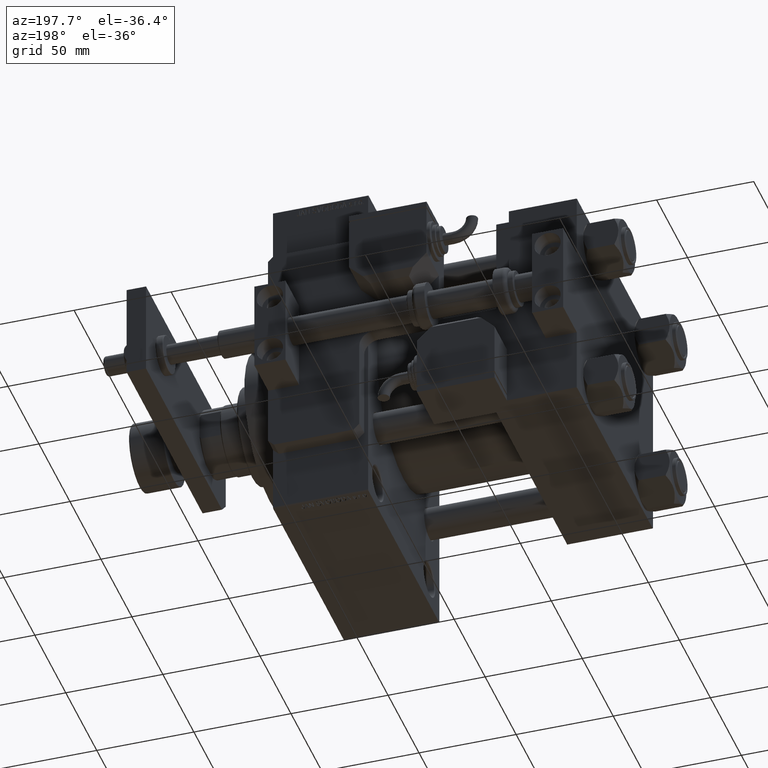
[diagram: clean part render]
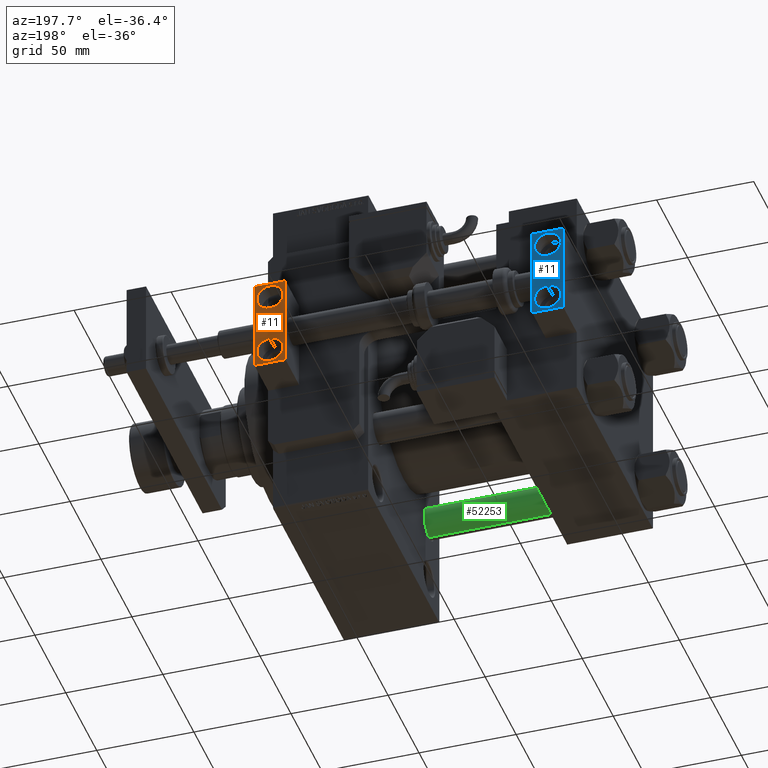
[diagram: same view with three faces highlighted in distinct colors, each labeled with its STEP entity id]
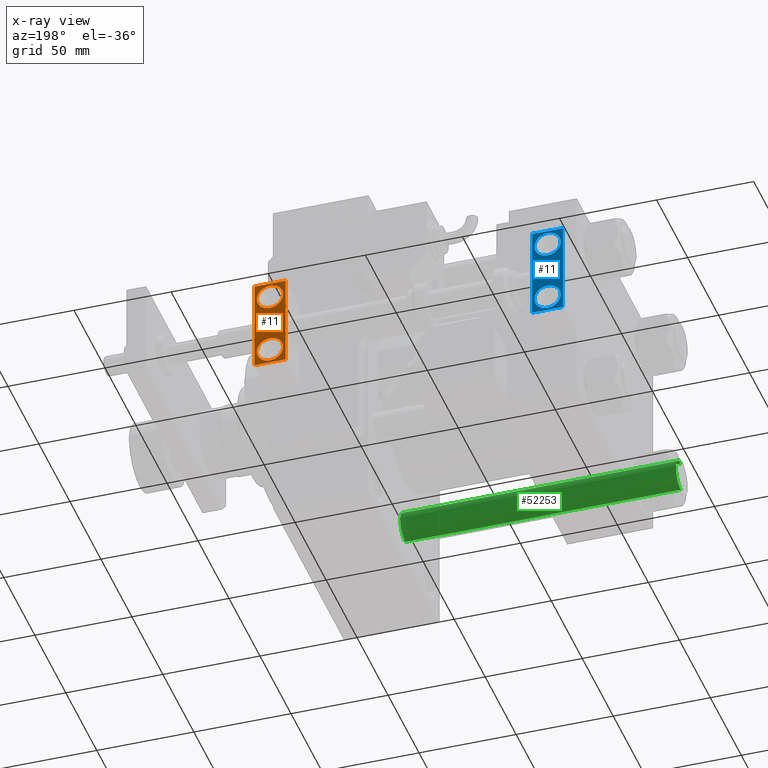
[diagram: x-ray of the same camera — body ghosted, the three highlighted faces saturated]
A machine part, auxiliary view with three faces highlighted in distinct colors.
The next image is the same camera in x-ray (body ghosted, the three faces saturated) — at least one of them is partly hidden behind the body in this view.
Their STEP definitions:

[orange] entity #11 — the highlighted planar face has unit normal (0, 1, -0).
#11 = ADVANCED_FACE ( 'NONE', ( #45481, #41648, #16630 ), #33487, .T. ) ;
#353 = ORIENTED_EDGE ( 'NONE', *, *, #23832, .T. ) ;
#665 = DIRECTION ( 'NONE',  ( 1.445602896647339410E-16, 1.000000000000000000, 0.000000000000000000 ) ) ;
#768 = LINE ( 'NONE', #29644, #4880 ) ;
#1466 = VECTOR ( 'NONE', #36576, 1000.000000000000000 ) ;
#3388 = EDGE_LOOP ( 'NONE', ( #29227, #20507 ) ) ;
#4096 = DIRECTION ( 'NONE',  ( -1.000000000000000000, 1.445602896647339410E-16, 0.000000000000000000 ) ) ;
#4880 = VECTOR ( 'NONE', #17121, 1000.000000000000000 ) ;
#4906 = VERTEX_POINT ( 'NONE', #14525 ) ;
#4992 = CIRCLE ( 'NONE', #11956, 6.749999999999999112 ) ;
#6104 = LINE ( 'NONE', #22734, #1466 ) ;
#6400 = EDGE_CURVE ( 'NONE', #23525, #45146, #10450, .T. ) ;
#6593 = VERTEX_POINT ( 'NONE', #11577 ) ;
#6870 = AXIS2_PLACEMENT_3D ( 'NONE', #8714, #42179, #4096 ) ;
#8125 = CARTESIAN_POINT ( 'NONE',  ( -23.99999999999999645, 11.00000000000000000, -16.00000000000000000 ) ) ;
#8427 = ORIENTED_EDGE ( 'NONE', *, *, #50709, .F. ) ;
#8714 = CARTESIAN_POINT ( 'NONE',  ( -23.99999999999999645, 11.00000000000000000, -16.00000000000000000 ) ) ;
#9009 = CARTESIAN_POINT ( 'NONE',  ( -22.75000000000000000, 11.00000000000000000, -8.000000000000000000 ) ) ;
#9593 = AXIS2_PLACEMENT_3D ( 'NONE', #20641, #37223, #29597 ) ;
#10450 = CIRCLE ( 'NONE', #9593, 6.749999999999999112 ) ;
#11078 = EDGE_CURVE ( 'NONE', #43535, #15525, #24243, .T. ) ;
#11577 = CARTESIAN_POINT ( 'NONE',  ( -23.99999999999999645, 11.00000000000000000, 0.000000000000000000 ) ) ;
#11956 = AXIS2_PLACEMENT_3D ( 'NONE', #23596, #51894, #39100 ) ;
#12275 = EDGE_CURVE ( 'NONE', #15525, #6593, #6104, .T. ) ;
#13013 = DIRECTION ( 'NONE',  ( 0.000000000000000000, 0.000000000000000000, 1.000000000000000000 ) ) ;
#14238 = EDGE_CURVE ( 'NONE', #4906, #52231, #17603, .T. ) ;
#14525 = CARTESIAN_POINT ( 'NONE',  ( 22.75000000000000000, 10.99999999999999289, -8.000000000000000000 ) ) ;
#15525 = VERTEX_POINT ( 'NONE', #25813 ) ;
#15571 = DIRECTION ( 'NONE',  ( -1.000000000000000000, 2.569960705150825891E-16, 0.000000000000000000 ) ) ;
#16630 = FACE_OUTER_BOUND ( 'NONE', #30272, .T. ) ;
#16706 = CARTESIAN_POINT ( 'NONE',  ( 9.249999999999998224, 10.99999999999999645, -8.000000000000000000 ) ) ;
#17121 = DIRECTION ( 'NONE',  ( -1.000000000000000000, 1.445602896647339410E-16, -0.000000000000000000 ) ) ;
#17603 = CIRCLE ( 'NONE', #48028, 6.749999999999999112 ) ;
#19889 = DIRECTION ( 'NONE',  ( 0.000000000000000000, 0.000000000000000000, 1.000000000000000000 ) ) ;
#20507 = ORIENTED_EDGE ( 'NONE', *, *, #14238, .F. ) ;
#20641 = CARTESIAN_POINT ( 'NONE',  ( -15.99999999999999645, 10.99999999999999822, -8.000000000000000000 ) ) ;
#21371 = CARTESIAN_POINT ( 'NONE',  ( -23.99999999999999645, 11.00000000000000000, -16.00000000000000000 ) ) ;
#22734 = CARTESIAN_POINT ( 'NONE',  ( -23.99999999999999645, 11.00000000000000000, 0.000000000000000000 ) ) ;
#23525 = VERTEX_POINT ( 'NONE', #9009 ) ;
#23596 = CARTESIAN_POINT ( 'NONE',  ( -15.99999999999999645, 10.99999999999999822, -8.000000000000000000 ) ) ;
#23832 = EDGE_CURVE ( 'NONE', #43535, #31454, #768, .T. ) ;
#24243 = LINE ( 'NONE', #28587, #50674 ) ;
#25813 = CARTESIAN_POINT ( 'NONE',  ( 23.99999999999999645, 10.99999999999999289, 0.000000000000000000 ) ) ;
#25864 = AXIS2_PLACEMENT_3D ( 'NONE', #30060, #665, #49698 ) ;
#26632 = EDGE_CURVE ( 'NONE', #31454, #6593, #50045, .T. ) ;
#26821 = ORIENTED_EDGE ( 'NONE', *, *, #12275, .F. ) ;
#27032 = CARTESIAN_POINT ( 'NONE',  ( 15.99999999999999645, 10.99999999999999467, -8.000000000000000000 ) ) ;
#28587 = CARTESIAN_POINT ( 'NONE',  ( 23.99999999999999645, 10.99999999999999289, -16.00000000000000000 ) ) ;
#29227 = ORIENTED_EDGE ( 'NONE', *, *, #53615, .F. ) ;
#29554 = ORIENTED_EDGE ( 'NONE', *, *, #26632, .T. ) ;
#29597 = DIRECTION ( 'NONE',  ( 1.000000000000000000, -2.569960705150825891E-16, 0.000000000000000000 ) ) ;
#29644 = CARTESIAN_POINT ( 'NONE',  ( -23.99999999999999645, 11.00000000000000000, -16.00000000000000000 ) ) ;
#29857 = ORIENTED_EDGE ( 'NONE', *, *, #6400, .F. ) ;
#30060 = CARTESIAN_POINT ( 'NONE',  ( 15.99999999999999645, 10.99999999999999467, -8.000000000000000000 ) ) ;
#30272 = EDGE_LOOP ( 'NONE', ( #26821, #33544, #353, #29554 ) ) ;
#31454 = VERTEX_POINT ( 'NONE', #21371 ) ;
#33487 = PLANE ( 'NONE',  #6870 ) ;
#33544 = ORIENTED_EDGE ( 'NONE', *, *, #11078, .F. ) ;
#36525 = DIRECTION ( 'NONE',  ( 1.445602896647339410E-16, 1.000000000000000000, 0.000000000000000000 ) ) ;
#36576 = DIRECTION ( 'NONE',  ( -1.000000000000000000, 1.445602896647339410E-16, -0.000000000000000000 ) ) ;
#37223 = DIRECTION ( 'NONE',  ( 1.445602896647339410E-16, 1.000000000000000000, -0.000000000000000000 ) ) ;
#39100 = DIRECTION ( 'NONE',  ( 1.000000000000000000, -2.569960705150825891E-16, 0.000000000000000000 ) ) ;
#39760 = CIRCLE ( 'NONE', #25864, 6.749999999999999112 ) ;
#41648 = FACE_BOUND ( 'NONE', #47179, .T. ) ;
#42179 = DIRECTION ( 'NONE',  ( 1.445602896647339410E-16, 1.000000000000000000, -0.000000000000000000 ) ) ;
#42870 = CARTESIAN_POINT ( 'NONE',  ( 23.99999999999999645, 10.99999999999999289, -16.00000000000000000 ) ) ;
#43535 = VERTEX_POINT ( 'NONE', #42870 ) ;
#45146 = VERTEX_POINT ( 'NONE', #47828 ) ;
#45481 = FACE_BOUND ( 'NONE', #3388, .T. ) ;
#47179 = EDGE_LOOP ( 'NONE', ( #29857, #8427 ) ) ;
#47828 = CARTESIAN_POINT ( 'NONE',  ( -9.249999999999996447, 10.99999999999999645, -8.000000000000000000 ) ) ;
#48028 = AXIS2_PLACEMENT_3D ( 'NONE', #27032, #36525, #15571 ) ;
#49698 = DIRECTION ( 'NONE',  ( -1.000000000000000000, 2.569960705150825891E-16, 0.000000000000000000 ) ) ;
#50045 = LINE ( 'NONE', #8125, #50999 ) ;
#50674 = VECTOR ( 'NONE', #19889, 1000.000000000000000 ) ;
#50709 = EDGE_CURVE ( 'NONE', #45146, #23525, #4992, .T. ) ;
#50999 = VECTOR ( 'NONE', #13013, 1000.000000000000000 ) ;
#51894 = DIRECTION ( 'NONE',  ( 1.445602896647339410E-16, 1.000000000000000000, -0.000000000000000000 ) ) ;
#52231 = VERTEX_POINT ( 'NONE', #16706 ) ;
#53615 = EDGE_CURVE ( 'NONE', #52231, #4906, #39760, .T. ) ;

[blue] entity #11 — the highlighted planar face has unit normal (0, 1, -0).
#11 = ADVANCED_FACE ( 'NONE', ( #45481, #41648, #16630 ), #33487, .T. ) ;
#353 = ORIENTED_EDGE ( 'NONE', *, *, #23832, .T. ) ;
#665 = DIRECTION ( 'NONE',  ( 1.445602896647339410E-16, 1.000000000000000000, 0.000000000000000000 ) ) ;
#768 = LINE ( 'NONE', #29644, #4880 ) ;
#1466 = VECTOR ( 'NONE', #36576, 1000.000000000000000 ) ;
#3388 = EDGE_LOOP ( 'NONE', ( #29227, #20507 ) ) ;
#4096 = DIRECTION ( 'NONE',  ( -1.000000000000000000, 1.445602896647339410E-16, 0.000000000000000000 ) ) ;
#4880 = VECTOR ( 'NONE', #17121, 1000.000000000000000 ) ;
#4906 = VERTEX_POINT ( 'NONE', #14525 ) ;
#4992 = CIRCLE ( 'NONE', #11956, 6.749999999999999112 ) ;
#6104 = LINE ( 'NONE', #22734, #1466 ) ;
#6400 = EDGE_CURVE ( 'NONE', #23525, #45146, #10450, .T. ) ;
#6593 = VERTEX_POINT ( 'NONE', #11577 ) ;
#6870 = AXIS2_PLACEMENT_3D ( 'NONE', #8714, #42179, #4096 ) ;
#8125 = CARTESIAN_POINT ( 'NONE',  ( -23.99999999999999645, 11.00000000000000000, -16.00000000000000000 ) ) ;
#8427 = ORIENTED_EDGE ( 'NONE', *, *, #50709, .F. ) ;
#8714 = CARTESIAN_POINT ( 'NONE',  ( -23.99999999999999645, 11.00000000000000000, -16.00000000000000000 ) ) ;
#9009 = CARTESIAN_POINT ( 'NONE',  ( -22.75000000000000000, 11.00000000000000000, -8.000000000000000000 ) ) ;
#9593 = AXIS2_PLACEMENT_3D ( 'NONE', #20641, #37223, #29597 ) ;
#10450 = CIRCLE ( 'NONE', #9593, 6.749999999999999112 ) ;
#11078 = EDGE_CURVE ( 'NONE', #43535, #15525, #24243, .T. ) ;
#11577 = CARTESIAN_POINT ( 'NONE',  ( -23.99999999999999645, 11.00000000000000000, 0.000000000000000000 ) ) ;
#11956 = AXIS2_PLACEMENT_3D ( 'NONE', #23596, #51894, #39100 ) ;
#12275 = EDGE_CURVE ( 'NONE', #15525, #6593, #6104, .T. ) ;
#13013 = DIRECTION ( 'NONE',  ( 0.000000000000000000, 0.000000000000000000, 1.000000000000000000 ) ) ;
#14238 = EDGE_CURVE ( 'NONE', #4906, #52231, #17603, .T. ) ;
#14525 = CARTESIAN_POINT ( 'NONE',  ( 22.75000000000000000, 10.99999999999999289, -8.000000000000000000 ) ) ;
#15525 = VERTEX_POINT ( 'NONE', #25813 ) ;
#15571 = DIRECTION ( 'NONE',  ( -1.000000000000000000, 2.569960705150825891E-16, 0.000000000000000000 ) ) ;
#16630 = FACE_OUTER_BOUND ( 'NONE', #30272, .T. ) ;
#16706 = CARTESIAN_POINT ( 'NONE',  ( 9.249999999999998224, 10.99999999999999645, -8.000000000000000000 ) ) ;
#17121 = DIRECTION ( 'NONE',  ( -1.000000000000000000, 1.445602896647339410E-16, -0.000000000000000000 ) ) ;
#17603 = CIRCLE ( 'NONE', #48028, 6.749999999999999112 ) ;
#19889 = DIRECTION ( 'NONE',  ( 0.000000000000000000, 0.000000000000000000, 1.000000000000000000 ) ) ;
#20507 = ORIENTED_EDGE ( 'NONE', *, *, #14238, .F. ) ;
#20641 = CARTESIAN_POINT ( 'NONE',  ( -15.99999999999999645, 10.99999999999999822, -8.000000000000000000 ) ) ;
#21371 = CARTESIAN_POINT ( 'NONE',  ( -23.99999999999999645, 11.00000000000000000, -16.00000000000000000 ) ) ;
#22734 = CARTESIAN_POINT ( 'NONE',  ( -23.99999999999999645, 11.00000000000000000, 0.000000000000000000 ) ) ;
#23525 = VERTEX_POINT ( 'NONE', #9009 ) ;
#23596 = CARTESIAN_POINT ( 'NONE',  ( -15.99999999999999645, 10.99999999999999822, -8.000000000000000000 ) ) ;
#23832 = EDGE_CURVE ( 'NONE', #43535, #31454, #768, .T. ) ;
#24243 = LINE ( 'NONE', #28587, #50674 ) ;
#25813 = CARTESIAN_POINT ( 'NONE',  ( 23.99999999999999645, 10.99999999999999289, 0.000000000000000000 ) ) ;
#25864 = AXIS2_PLACEMENT_3D ( 'NONE', #30060, #665, #49698 ) ;
#26632 = EDGE_CURVE ( 'NONE', #31454, #6593, #50045, .T. ) ;
#26821 = ORIENTED_EDGE ( 'NONE', *, *, #12275, .F. ) ;
#27032 = CARTESIAN_POINT ( 'NONE',  ( 15.99999999999999645, 10.99999999999999467, -8.000000000000000000 ) ) ;
#28587 = CARTESIAN_POINT ( 'NONE',  ( 23.99999999999999645, 10.99999999999999289, -16.00000000000000000 ) ) ;
#29227 = ORIENTED_EDGE ( 'NONE', *, *, #53615, .F. ) ;
#29554 = ORIENTED_EDGE ( 'NONE', *, *, #26632, .T. ) ;
#29597 = DIRECTION ( 'NONE',  ( 1.000000000000000000, -2.569960705150825891E-16, 0.000000000000000000 ) ) ;
#29644 = CARTESIAN_POINT ( 'NONE',  ( -23.99999999999999645, 11.00000000000000000, -16.00000000000000000 ) ) ;
#29857 = ORIENTED_EDGE ( 'NONE', *, *, #6400, .F. ) ;
#30060 = CARTESIAN_POINT ( 'NONE',  ( 15.99999999999999645, 10.99999999999999467, -8.000000000000000000 ) ) ;
#30272 = EDGE_LOOP ( 'NONE', ( #26821, #33544, #353, #29554 ) ) ;
#31454 = VERTEX_POINT ( 'NONE', #21371 ) ;
#33487 = PLANE ( 'NONE',  #6870 ) ;
#33544 = ORIENTED_EDGE ( 'NONE', *, *, #11078, .F. ) ;
#36525 = DIRECTION ( 'NONE',  ( 1.445602896647339410E-16, 1.000000000000000000, 0.000000000000000000 ) ) ;
#36576 = DIRECTION ( 'NONE',  ( -1.000000000000000000, 1.445602896647339410E-16, -0.000000000000000000 ) ) ;
#37223 = DIRECTION ( 'NONE',  ( 1.445602896647339410E-16, 1.000000000000000000, -0.000000000000000000 ) ) ;
#39100 = DIRECTION ( 'NONE',  ( 1.000000000000000000, -2.569960705150825891E-16, 0.000000000000000000 ) ) ;
#39760 = CIRCLE ( 'NONE', #25864, 6.749999999999999112 ) ;
#41648 = FACE_BOUND ( 'NONE', #47179, .T. ) ;
#42179 = DIRECTION ( 'NONE',  ( 1.445602896647339410E-16, 1.000000000000000000, -0.000000000000000000 ) ) ;
#42870 = CARTESIAN_POINT ( 'NONE',  ( 23.99999999999999645, 10.99999999999999289, -16.00000000000000000 ) ) ;
#43535 = VERTEX_POINT ( 'NONE', #42870 ) ;
#45146 = VERTEX_POINT ( 'NONE', #47828 ) ;
#45481 = FACE_BOUND ( 'NONE', #3388, .T. ) ;
#47179 = EDGE_LOOP ( 'NONE', ( #29857, #8427 ) ) ;
#47828 = CARTESIAN_POINT ( 'NONE',  ( -9.249999999999996447, 10.99999999999999645, -8.000000000000000000 ) ) ;
#48028 = AXIS2_PLACEMENT_3D ( 'NONE', #27032, #36525, #15571 ) ;
#49698 = DIRECTION ( 'NONE',  ( -1.000000000000000000, 2.569960705150825891E-16, 0.000000000000000000 ) ) ;
#50045 = LINE ( 'NONE', #8125, #50999 ) ;
#50674 = VECTOR ( 'NONE', #19889, 1000.000000000000000 ) ;
#50709 = EDGE_CURVE ( 'NONE', #45146, #23525, #4992, .T. ) ;
#50999 = VECTOR ( 'NONE', #13013, 1000.000000000000000 ) ;
#51894 = DIRECTION ( 'NONE',  ( 1.445602896647339410E-16, 1.000000000000000000, -0.000000000000000000 ) ) ;
#52231 = VERTEX_POINT ( 'NONE', #16706 ) ;
#53615 = EDGE_CURVE ( 'NONE', #52231, #4906, #39760, .T. ) ;

[green] entity #52253 — the highlighted cylindrical surface (edge-blend (fillet) strip) has radius 8 mm, axis along (1, 0, 0).
#1407 = CARTESIAN_POINT ( 'NONE',  ( 0.000000000000000000, 0.000000000000000000, 142.4999999999999716 ) ) ;
#2216 = DIRECTION ( 'NONE',  ( 1.000000000000000000, 0.000000000000000000, 0.000000000000000000 ) ) ;
#3027 = DIRECTION ( 'NONE',  ( -0.000000000000000000, -0.000000000000000000, 1.000000000000000000 ) ) ;
#7867 = CIRCLE ( 'NONE', #40901, 8.000000000000000000 ) ;
#8926 = VECTOR ( 'NONE', #50627, 1000.000000000000000 ) ;
#9000 = CIRCLE ( 'NONE', #23788, 8.000000000000000000 ) ;
#9879 = VERTEX_POINT ( 'NONE', #47709 ) ;
#11463 = VERTEX_POINT ( 'NONE', #20105 ) ;
#12881 = DIRECTION ( 'NONE',  ( -1.000000000000000000, 0.000000000000000000, 0.000000000000000000 ) ) ;
#13855 = ORIENTED_EDGE ( 'NONE', *, *, #34192, .T. ) ;
#13956 = VERTEX_POINT ( 'NONE', #51314 ) ;
#15783 = CARTESIAN_POINT ( 'NONE',  ( 8.000000000000000000, 9.797174393178825657E-16, 143.0000000000000000 ) ) ;
#18732 = VECTOR ( 'NONE', #32657, 1000.000000000000000 ) ;
#19196 = EDGE_CURVE ( 'NONE', #9879, #25977, #31834, .T. ) ;
#20105 = CARTESIAN_POINT ( 'NONE',  ( -8.000000000000000000, 0.000000000000000000, 0.4999999999999726885 ) ) ;
#22934 = DIRECTION ( 'NONE',  ( 0.000000000000000000, 0.000000000000000000, -1.000000000000000000 ) ) ;
#23788 = AXIS2_PLACEMENT_3D ( 'NONE', #39510, #3027, #47684 ) ;
#24481 = ORIENTED_EDGE ( 'NONE', *, *, #19196, .F. ) ;
#25977 = VERTEX_POINT ( 'NONE', #39891 ) ;
#28876 = CARTESIAN_POINT ( 'NONE',  ( -8.000000000000000000, 0.000000000000000000, 143.0000000000000000 ) ) ;
#29879 = ORIENTED_EDGE ( 'NONE', *, *, #40749, .T. ) ;
#31834 = LINE ( 'NONE', #15783, #18732 ) ;
#32657 = DIRECTION ( 'NONE',  ( -0.000000000000000000, -0.000000000000000000, -1.000000000000000000 ) ) ;
#33743 = LINE ( 'NONE', #28876, #8926 ) ;
#34192 = EDGE_CURVE ( 'NONE', #9879, #13956, #7867, .T. ) ;
#36241 = AXIS2_PLACEMENT_3D ( 'NONE', #41993, #46884, #12881 ) ;
#37552 = ORIENTED_EDGE ( 'NONE', *, *, #41916, .T. ) ;
#39510 = CARTESIAN_POINT ( 'NONE',  ( 0.000000000000000000, 0.000000000000000000, 0.4999999999999726885 ) ) ;
#39891 = CARTESIAN_POINT ( 'NONE',  ( 8.000000000000000000, 9.797174393178825657E-16, 0.4999999999999726885 ) ) ;
#40749 = EDGE_CURVE ( 'NONE', #13956, #11463, #33743, .T. ) ;
#40901 = AXIS2_PLACEMENT_3D ( 'NONE', #1407, #22934, #2216 ) ;
#41916 = EDGE_CURVE ( 'NONE', #11463, #25977, #9000, .T. ) ;
#41993 = CARTESIAN_POINT ( 'NONE',  ( 0.000000000000000000, 0.000000000000000000, 143.0000000000000000 ) ) ;
#42520 = FACE_OUTER_BOUND ( 'NONE', #43122, .T. ) ;
#43122 = EDGE_LOOP ( 'NONE', ( #24481, #13855, #29879, #37552 ) ) ;
#46884 = DIRECTION ( 'NONE',  ( -0.000000000000000000, -0.000000000000000000, -1.000000000000000000 ) ) ;
#47153 = CYLINDRICAL_SURFACE ( 'NONE', #36241, 8.000000000000000000 ) ;
#47684 = DIRECTION ( 'NONE',  ( 1.000000000000000000, 0.000000000000000000, 0.000000000000000000 ) ) ;
#47709 = CARTESIAN_POINT ( 'NONE',  ( 8.000000000000000000, 9.797174393178825657E-16, 142.4999999999999716 ) ) ;
#50627 = DIRECTION ( 'NONE',  ( -0.000000000000000000, -0.000000000000000000, -1.000000000000000000 ) ) ;
#51314 = CARTESIAN_POINT ( 'NONE',  ( -8.000000000000000000, 0.000000000000000000, 142.4999999999999716 ) ) ;
#52253 = ADVANCED_FACE ( 'NONE', ( #42520 ), #47153, .T. ) ;